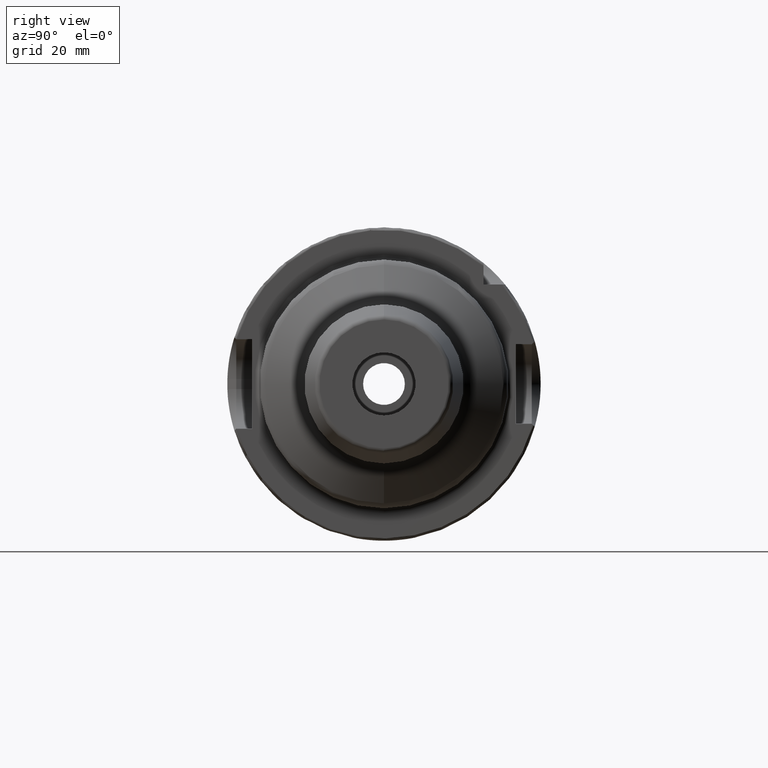
[diagram: clean part render]
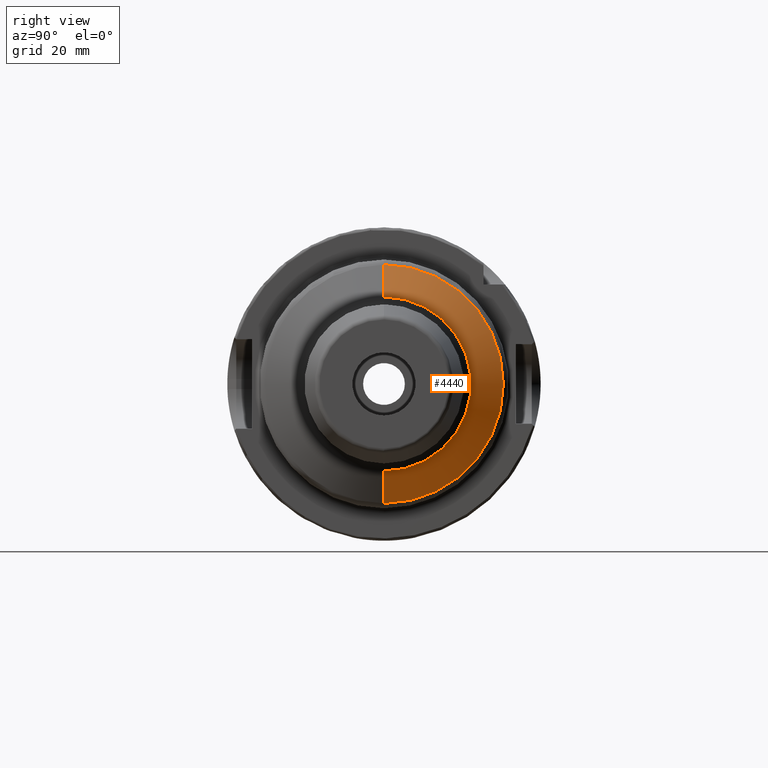
[diagram: same view with one face highlighted and labeled with its STEP entity id]
A machine part, right view. The second image highlights one B-rep face of the part: STEP entity #4440.
In plain terms, the highlighted conical surface has half-angle 60 deg.
Its self-contained STEP definition (entity closure, byte-faithful):
#907=CARTESIAN_POINT('',(4.413397459621E1,0.E0,0.E0));
#908=DIRECTION('',(1.E0,0.E0,0.E0));
#909=DIRECTION('',(0.E0,0.E0,-1.E0));
#910=AXIS2_PLACEMENT_3D('',#907,#908,#909);
#912=DIRECTION('',(-5.E-1,0.E0,-8.660254037844E-1));
#913=VECTOR('',#912,7.505553499462E0);
#914=CARTESIAN_POINT('',(4.413397459621E1,0.E0,-1.75E1));
#915=LINE('',#914,#913);
#916=DIRECTION('',(-5.E-1,0.E0,8.660254037844E-1));
#917=VECTOR('',#916,7.505553499462E0);
#918=CARTESIAN_POINT('',(4.413397459621E1,0.E0,1.75E1));
#919=LINE('',#918,#917);
#940=CARTESIAN_POINT('',(4.038119784648E1,0.E0,0.E0));
#941=DIRECTION('',(1.E0,0.E0,0.E0));
#942=DIRECTION('',(0.E0,0.E0,-1.E0));
#943=AXIS2_PLACEMENT_3D('',#940,#941,#942);
#3212=CARTESIAN_POINT('',(4.413397459621E1,0.E0,-1.75E1));
#3213=VERTEX_POINT('',#3212);
#3214=CARTESIAN_POINT('',(4.038119784648E1,0.E0,-2.4E1));
#3215=VERTEX_POINT('',#3214);
#3272=CARTESIAN_POINT('',(4.413397459621E1,0.E0,1.75E1));
#3273=VERTEX_POINT('',#3272);
#3274=CARTESIAN_POINT('',(4.038119784648E1,0.E0,2.4E1));
#3275=VERTEX_POINT('',#3274);
#4426=CARTESIAN_POINT('',(4.225758622135E1,0.E0,0.E0));
#4427=DIRECTION('',(-1.E0,0.E0,0.E0));
#4428=DIRECTION('',(0.E0,0.E0,-1.E0));
#4429=AXIS2_PLACEMENT_3D('',#4426,#4427,#4428);
#4430=CONICAL_SURFACE('',#4429,2.075E1,6.E1);
#4432=ORIENTED_EDGE('',*,*,#4431,.F.);
#4433=ORIENTED_EDGE('',*,*,#4421,.T.);
#4435=ORIENTED_EDGE('',*,*,#4434,.T.);
#4437=ORIENTED_EDGE('',*,*,#4436,.F.);
#4438=EDGE_LOOP('',(#4432,#4433,#4435,#4437));
#4439=FACE_OUTER_BOUND('',#4438,.F.);
#4440=ADVANCED_FACE('',(#4439),#4430,.T.);
#911=CIRCLE('',#910,1.75E1);
#944=CIRCLE('',#943,2.4E1);
#4421=EDGE_CURVE('',#3213,#3273,#911,.T.);
#4431=EDGE_CURVE('',#3213,#3215,#915,.T.);
#4434=EDGE_CURVE('',#3273,#3275,#919,.T.);
#4436=EDGE_CURVE('',#3215,#3275,#944,.T.);